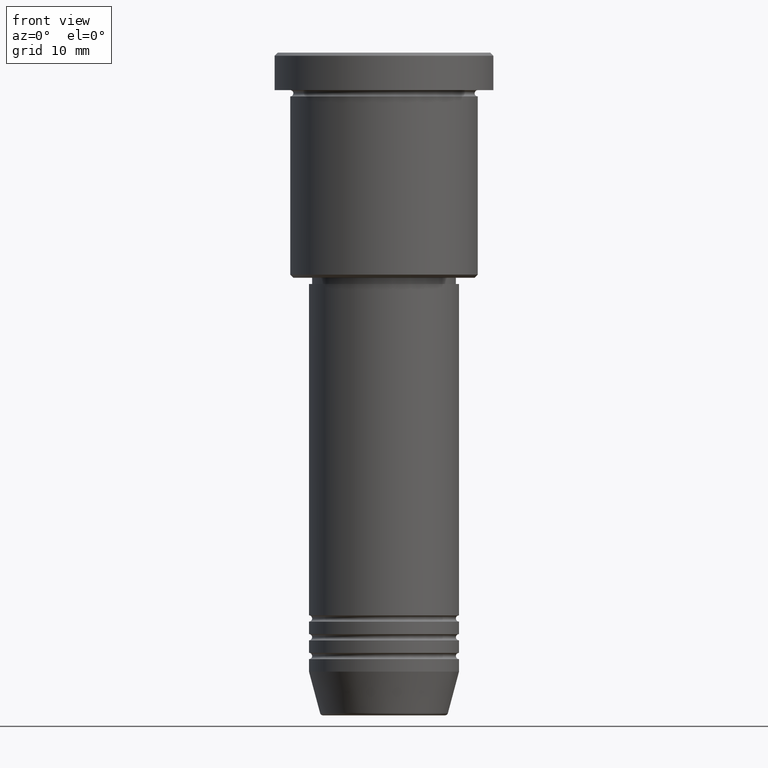
[diagram: clean part render]
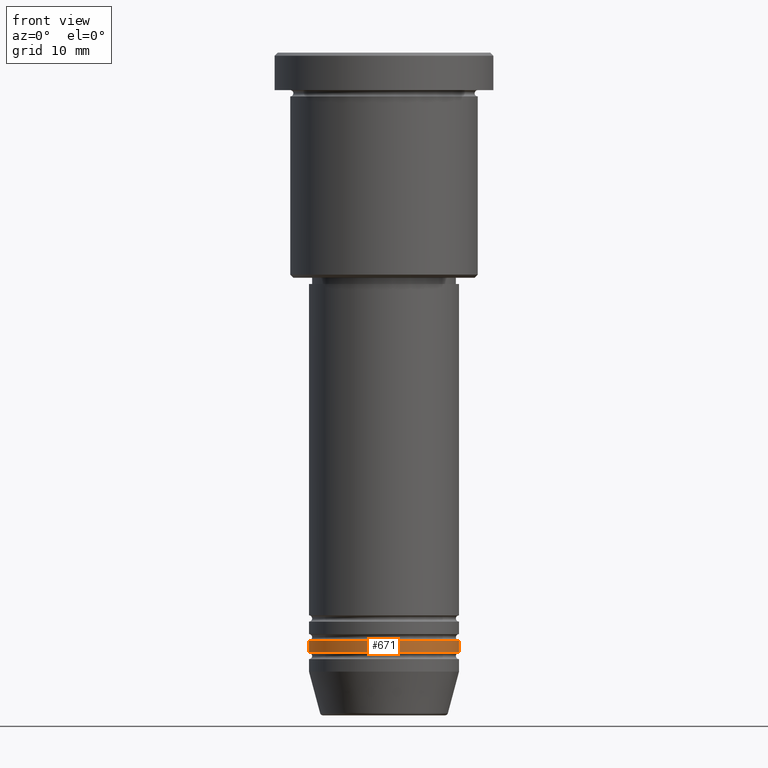
[diagram: same view with one face highlighted and labeled with its STEP entity id]
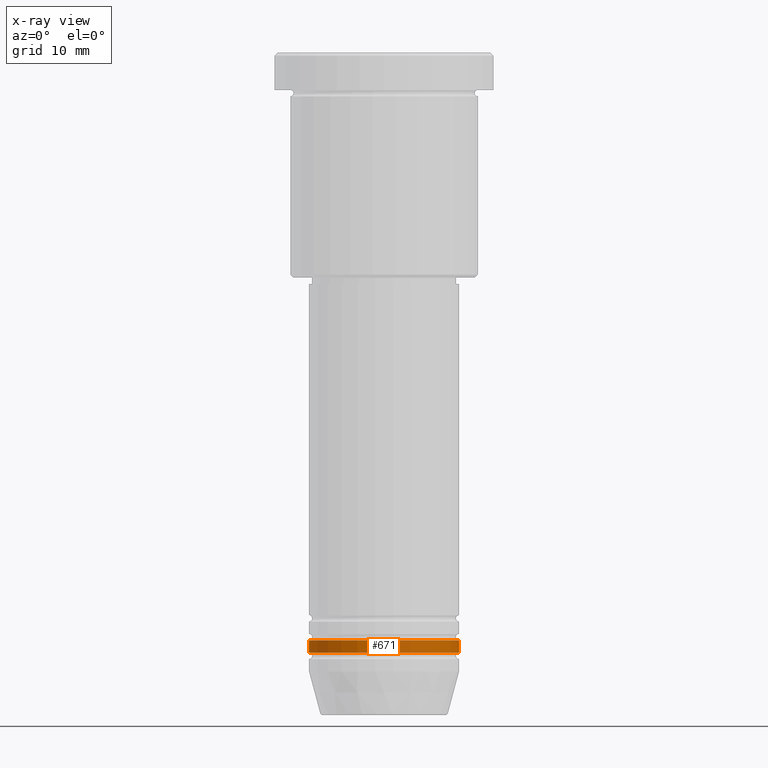
[diagram: x-ray of the same camera — body ghosted, the highlighted face saturated]
A machine part, front view. The second image highlights one B-rep face of the part: STEP entity #671.
The next image is the same camera in x-ray: the body ghosted, the highlighted face saturated — about 0% of this face is hidden behind the body in this view.
In plain terms, the highlighted cylindrical surface (partial cylindrical patch) has radius 12 mm, axis along (-0, -0, 1).
Its self-contained STEP definition (entity closure, byte-faithful):
#9 = LINE ( 'NONE', #565, #573 ) ;
#17 = FACE_OUTER_BOUND ( 'NONE', #1049, .T. ) ;
#19 = AXIS2_PLACEMENT_3D ( 'NONE', #603, #179, #622 ) ;
#109 = CARTESIAN_POINT ( 'NONE',  ( 12.00000000000000000, 0.000000000000000000, 0.000000000000000000 ) ) ;
#118 = CIRCLE ( 'NONE', #19, 12.00000000000000000 ) ;
#163 = VECTOR ( 'NONE', #380, 1000.000000000000000 ) ;
#179 = DIRECTION ( 'NONE',  ( -0.000000000000000000, -0.000000000000000000, 1.000000000000000000 ) ) ;
#207 = CARTESIAN_POINT ( 'NONE',  ( 0.000000000000000000, 0.000000000000000000, 0.000000000000000000 ) ) ;
#246 = CARTESIAN_POINT ( 'NONE',  ( -12.00000000000000000, 1.469576158976823947E-15, -93.99999999999998579 ) ) ;
#261 = DIRECTION ( 'NONE',  ( -0.000000000000000000, -0.000000000000000000, 1.000000000000000000 ) ) ;
#292 = EDGE_CURVE ( 'NONE', #391, #918, #118, .T. ) ;
#312 = AXIS2_PLACEMENT_3D ( 'NONE', #207, #758, #471 ) ;
#328 = AXIS2_PLACEMENT_3D ( 'NONE', #525, #261, #989 ) ;
#374 = CYLINDRICAL_SURFACE ( 'NONE', #312, 12.00000000000000000 ) ;
#380 = DIRECTION ( 'NONE',  ( -0.000000000000000000, -0.000000000000000000, 1.000000000000000000 ) ) ;
#391 = VERTEX_POINT ( 'NONE', #246 ) ;
#436 = CARTESIAN_POINT ( 'NONE',  ( -12.00000000000000000, 1.469576158976823947E-15, -95.99999999999997158 ) ) ;
#471 = DIRECTION ( 'NONE',  ( 1.000000000000000000, 0.000000000000000000, 0.000000000000000000 ) ) ;
#504 = ORIENTED_EDGE ( 'NONE', *, *, #292, .F. ) ;
#525 = CARTESIAN_POINT ( 'NONE',  ( 0.000000000000000000, 0.000000000000000000, -95.99999999999997158 ) ) ;
#534 = CIRCLE ( 'NONE', #328, 12.00000000000000000 ) ;
#544 = ORIENTED_EDGE ( 'NONE', *, *, #682, .F. ) ;
#565 = CARTESIAN_POINT ( 'NONE',  ( -12.00000000000000000, 1.469576158976823947E-15, 0.000000000000000000 ) ) ;
#573 = VECTOR ( 'NONE', #1119, 1000.000000000000000 ) ;
#603 = CARTESIAN_POINT ( 'NONE',  ( 0.000000000000000000, 0.000000000000000000, -93.99999999999998579 ) ) ;
#622 = DIRECTION ( 'NONE',  ( 1.000000000000000000, 0.000000000000000000, 0.000000000000000000 ) ) ;
#625 = VERTEX_POINT ( 'NONE', #436 ) ;
#671 = ADVANCED_FACE ( 'NONE', ( #17 ), #374, .T. ) ;
#673 = CARTESIAN_POINT ( 'NONE',  ( 12.00000000000000000, 0.000000000000000000, -93.99999999999998579 ) ) ;
#682 = EDGE_CURVE ( 'NONE', #625, #391, #9, .T. ) ;
#758 = DIRECTION ( 'NONE',  ( -0.000000000000000000, -0.000000000000000000, 1.000000000000000000 ) ) ;
#802 = EDGE_CURVE ( 'NONE', #625, #1142, #534, .T. ) ;
#813 = ORIENTED_EDGE ( 'NONE', *, *, #1134, .T. ) ;
#907 = ORIENTED_EDGE ( 'NONE', *, *, #802, .T. ) ;
#918 = VERTEX_POINT ( 'NONE', #673 ) ;
#938 = LINE ( 'NONE', #109, #163 ) ;
#989 = DIRECTION ( 'NONE',  ( 1.000000000000000000, 0.000000000000000000, 0.000000000000000000 ) ) ;
#1049 = EDGE_LOOP ( 'NONE', ( #544, #907, #813, #504 ) ) ;
#1107 = CARTESIAN_POINT ( 'NONE',  ( 12.00000000000000000, 0.000000000000000000, -95.99999999999997158 ) ) ;
#1119 = DIRECTION ( 'NONE',  ( -0.000000000000000000, -0.000000000000000000, 1.000000000000000000 ) ) ;
#1134 = EDGE_CURVE ( 'NONE', #1142, #918, #938, .T. ) ;
#1142 = VERTEX_POINT ( 'NONE', #1107 ) ;